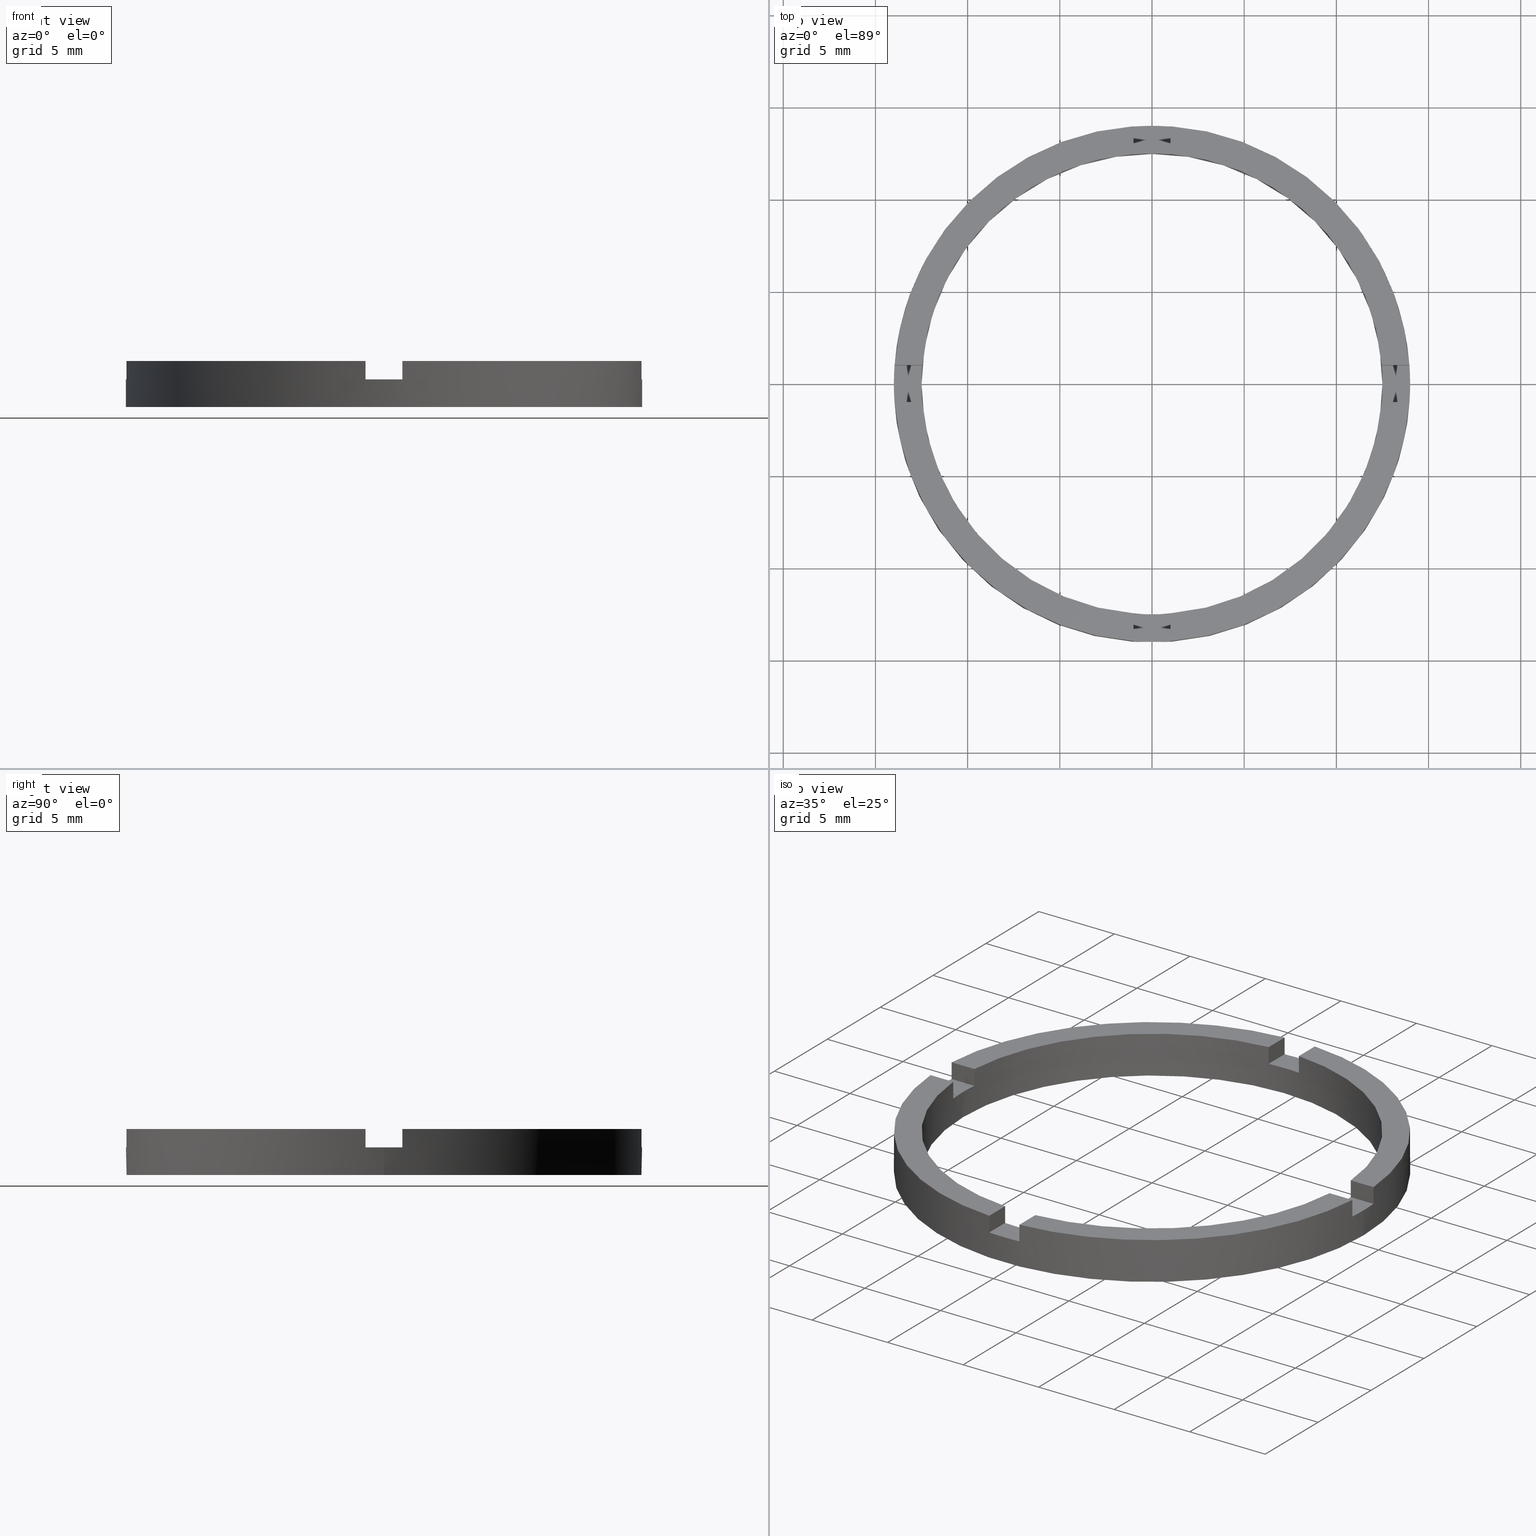
[diagram: canonical four-view strip — front | top / right | iso, engineering-drawing reading convention]
A machine part, canonical four-view strip (front | top / right | iso — engineering-drawing reading convention). The complete STEP part file that produces these views, byte-faithful:
ISO-10303-21;
HEADER;
FILE_DESCRIPTION (( 'STEP AP203' ),
    '1' );
FILE_NAME ('514062.step',
    '2024-12-26T02:33:55',
    ( 'MSI' ),
    ( '' ),
    'SwSTEP 2.0',
    'SolidWorks 2020',
    '' );
FILE_SCHEMA (( 'CONFIG_CONTROL_DESIGN' ));
ENDSEC;

DATA;
#1 = CIRCLE ( 'NONE', #242, 12.50000000000000000 ) ;
#2 = FACE_OUTER_BOUND ( 'NONE', #368, .T. ) ;
#3 = LINE ( 'NONE', #407, #265 ) ;
#4 = CIRCLE ( 'NONE', #313, 14.00000000000000000 ) ;
#5 = CARTESIAN_POINT ( 'NONE',  ( 0.000000000000000000, 0.000000000000000000, 1.500000000000000000 ) ) ;
#6 = LINE ( 'NONE', #245, #522 ) ;
#7 = VECTOR ( 'NONE', #341, 1000.000000000000000 ) ;
#8 = CYLINDRICAL_SURFACE ( 'NONE', #193, 14.00000000000000000 ) ;
#9 = CARTESIAN_POINT ( 'NONE',  ( 0.000000000000000000, 0.000000000000000000, 1.500000000000000000 ) ) ;
#10 = VECTOR ( 'NONE', #627, 1000.000000000000000 ) ;
#11 = DIRECTION ( 'NONE',  ( 1.000000000000000000, 0.000000000000000000, 0.000000000000000000 ) ) ;
#12 = CARTESIAN_POINT ( 'NONE',  ( 12.50000000000000000, 1.530808498934191521E-15, 2.500000000000000000 ) ) ;
#13 = DIRECTION ( 'NONE',  ( 0.000000000000000000, 0.000000000000000000, 1.000000000000000000 ) ) ;
#14 = CARTESIAN_POINT ( 'NONE',  ( 0.000000000000000000, 0.000000000000000000, 2.500000000000000000 ) ) ;
#15 = EDGE_CURVE ( 'NONE', #456, #420, #459, .T. ) ;
#16 = APPROVAL_PERSON_ORGANIZATION ( #304, #643, #562 ) ;
#17 = ADVANCED_FACE ( 'NONE', ( #260 ), #8, .T. ) ;
#18 = DIRECTION ( 'NONE',  ( 1.000000000000000000, 0.000000000000000000, 0.000000000000000000 ) ) ;
#19 = PERSON_AND_ORGANIZATION ( #90, #343 ) ;
#20 = CARTESIAN_POINT ( 'NONE',  ( 12.45993579437710075, -1.000000000000159872, 2.500000000000000000 ) ) ;
#21 = CARTESIAN_POINT ( 'NONE',  ( 0.9999999999999753530, 4.000000000000000000, 2.500000000000000000 ) ) ;
#22 = DIRECTION ( 'NONE',  ( 1.000000000000000000, 4.336808689942017736E-17, 0.000000000000000000 ) ) ;
#23 = COORDINATED_UNIVERSAL_TIME_OFFSET ( 8, 0, .AHEAD. ) ;
#24 = DIRECTION ( 'NONE',  ( 0.000000000000000000, 0.000000000000000000, 1.000000000000000000 ) ) ;
#25 = LOCAL_TIME ( 10, 33, 55.00000000000000000, #549 ) ;
#26 = DIRECTION ( 'NONE',  ( 1.000000000000000000, 0.000000000000000000, 0.000000000000000000 ) ) ;
#27 = PERSON_AND_ORGANIZATION ( #90, #343 ) ;
#28 = EDGE_CURVE ( 'NONE', #187, #665, #530, .T. ) ;
#29 = DIRECTION ( 'NONE',  ( -0.000000000000000000, -0.000000000000000000, -1.000000000000000000 ) ) ;
#30 = DATE_AND_TIME ( #544, #298 ) ;
#31 = DIRECTION ( 'NONE',  ( 1.301042606982605321E-16, -1.000000000000000000, 0.000000000000000000 ) ) ;
#32 = AXIS2_PLACEMENT_3D ( 'NONE', #561, #601, #31 ) ;
#33 = DIRECTION ( 'NONE',  ( 0.000000000000000000, 0.000000000000000000, 1.000000000000000000 ) ) ;
#34 = COORDINATED_UNIVERSAL_TIME_OFFSET ( 8, 0, .AHEAD. ) ;
#35 = DIRECTION ( 'NONE',  ( 1.000000000000000000, 0.000000000000000000, 0.000000000000000000 ) ) ;
#36 = CARTESIAN_POINT ( 'NONE',  ( -1.000000000000024647, 12.45993579437711141, 1.500000000000000000 ) ) ;
#37 = DATE_AND_TIME ( #537, #41 ) ;
#38 = LOCAL_TIME ( 10, 33, 55.00000000000000000, #295 ) ;
#39 = DIRECTION ( 'NONE',  ( -1.000000000000000000, -1.734723475976807094E-16, 0.000000000000000000 ) ) ;
#40 = PERSON_AND_ORGANIZATION ( #90, #343 ) ;
#41 = LOCAL_TIME ( 10, 33, 55.00000000000000000, #301 ) ;
#42 = CARTESIAN_POINT ( 'NONE',  ( 13.96424004376893002, -1.000000000000159650, 2.500000000000000000 ) ) ;
#43 = CARTESIAN_POINT ( 'NONE',  ( 0.000000000000000000, 0.000000000000000000, 0.000000000000000000 ) ) ;
#44 = DIRECTION ( 'NONE',  ( 1.000000000000000000, 0.000000000000000000, 0.000000000000000000 ) ) ;
#45 = EDGE_CURVE ( 'NONE', #656, #655, #524, .T. ) ;
#46 = DIRECTION ( 'NONE',  ( 0.000000000000000000, 0.000000000000000000, 1.000000000000000000 ) ) ;
#47 = APPLICATION_CONTEXT ( 'configuration controlled 3d designs of mechanical parts and assemblies' ) ;
#48 = DIRECTION ( 'NONE',  ( 0.000000000000000000, 0.000000000000000000, 1.000000000000000000 ) ) ;
#49 = AXIS2_PLACEMENT_3D ( 'NONE', #422, #543, #646 ) ;
#50 = AXIS2_PLACEMENT_3D ( 'NONE', #209, #264, #323 ) ;
#51 = DIRECTION ( 'NONE',  ( 1.000000000000000000, 0.000000000000000000, 0.000000000000000000 ) ) ;
#52 = EDGE_CURVE ( 'NONE', #116, #447, #269, .T. ) ;
#53 = DIRECTION ( 'NONE',  ( 0.000000000000000000, 0.000000000000000000, 1.000000000000000000 ) ) ;
#54 = CARTESIAN_POINT ( 'NONE',  ( -4.000000000000185629, 0.9999999999999790168, 2.500000000000000000 ) ) ;
#55 = AXIS2_PLACEMENT_3D ( 'NONE', #764, #148, #380 ) ;
#56 = CARTESIAN_POINT ( 'NONE',  ( -1.000000000000164535, -4.000000000000180300, 2.500000000000000000 ) ) ;
#57 = CARTESIAN_POINT ( 'NONE',  ( 0.000000000000000000, 0.000000000000000000, 0.000000000000000000 ) ) ;
#58 = PLANE ( 'NONE',  #410 ) ;
#59 = CC_DESIGN_DATE_AND_TIME_ASSIGNMENT ( #547, #84, ( #361 ) ) ;
#60 = PLANE ( 'NONE',  #106 ) ;
#61 = EDGE_CURVE ( 'NONE', #711, #420, #519, .T. ) ;
#62 = CARTESIAN_POINT ( 'NONE',  ( 0.000000000000000000, 0.000000000000000000, 2.500000000000000000 ) ) ;
#63 = ADVANCED_FACE ( 'NONE', ( #2 ), #639, .T. ) ;
#64 = EDGE_CURVE ( 'NONE', #227, #116, #3, .T. ) ;
#65 = DIRECTION ( 'NONE',  ( -1.000000000000000000, -4.336808689942017736E-17, 0.000000000000000000 ) ) ;
#66 = DIRECTION ( 'NONE',  ( 1.000000000000000000, 0.000000000000000000, 0.000000000000000000 ) ) ;
#67 = AXIS2_PLACEMENT_3D ( 'NONE', #117, #397, #184 ) ;
#68 = DIRECTION ( 'NONE',  ( 0.000000000000000000, -0.000000000000000000, 1.000000000000000000 ) ) ;
#69 = CARTESIAN_POINT ( 'NONE',  ( 13.96424004376895311, 0.9999999999998404610, 2.500000000000000000 ) ) ;
#70 = ADVANCED_BREP_SHAPE_REPRESENTATION ( '514062', ( #741, #675 ), #286 ) ;
#71 = PLANE ( 'NONE',  #558 ) ;
#72 = EDGE_CURVE ( 'NONE', #648, #231, #525, .T. ) ;
#73 = DIRECTION ( 'NONE',  ( 0.000000000000000000, 0.000000000000000000, 1.000000000000000000 ) ) ;
#74 = ADVANCED_FACE ( 'NONE', ( #266 ), #60, .T. ) ;
#75 = DIRECTION ( 'NONE',  ( 0.000000000000000000, 0.000000000000000000, 1.000000000000000000 ) ) ;
#76 = PRODUCT_DEFINITION_SHAPE ( 'NONE', 'NONE',  #395 ) ;
#77 = DIRECTION ( 'NONE',  ( 1.000000000000000000, 1.734723475976807094E-16, 0.000000000000000000 ) ) ;
#78 = AXIS2_PLACEMENT_3D ( 'NONE', #435, #754, #77 ) ;
#79 = EDGE_CURVE ( 'NONE', #131, #448, #4, .T. ) ;
#80 = DIRECTION ( 'NONE',  ( 1.000000000000000000, 1.734723475976807094E-16, -0.000000000000000000 ) ) ;
#81 = DIRECTION ( 'NONE',  ( 1.000000000000000000, 0.000000000000000000, 0.000000000000000000 ) ) ;
#82 = FACE_OUTER_BOUND ( 'NONE', #160, .T. ) ;
#83 = AXIS2_PLACEMENT_3D ( 'NONE', #523, #776, #373 ) ;
#84 = DATE_TIME_ROLE ( 'classification_date' ) ;
#85 = LINE ( 'NONE', #143, #333 ) ;
#86 = VECTOR ( 'NONE', #29, 1000.000000000000000 ) ;
#87 = CARTESIAN_POINT ( 'NONE',  ( 0.9999999999998366862, -13.96424004376895311, 2.500000000000000000 ) ) ;
#88 = VECTOR ( 'NONE', #683, 1000.000000000000000 ) ;
#89 = VECTOR ( 'NONE', #228, 1000.000000000000000 ) ;
#90 = PERSON ( 'δָ��', 'δָ��', 'δָ��', ('δָ��'), ('δָ��'), ('δָ��') ) ;
#91 = EDGE_CURVE ( 'NONE', #648, #448, #528, .T. ) ;
#92 = DIRECTION ( 'NONE',  ( 0.000000000000000000, 0.000000000000000000, 1.000000000000000000 ) ) ;
#93 = AXIS2_PLACEMENT_3D ( 'NONE', #717, #238, #330 ) ;
#94 = DIRECTION ( 'NONE',  ( 0.000000000000000000, 0.000000000000000000, 1.000000000000000000 ) ) ;
#95 = LINE ( 'NONE', #450, #89 ) ;
#96 = CARTESIAN_POINT ( 'NONE',  ( 3.999999999999994671, -1.000000000000160094, 1.500000000000000000 ) ) ;
#97 = PLANE ( 'NONE',  #261 ) ;
#98 = DIRECTION ( 'NONE',  ( -0.000000000000000000, -0.000000000000000000, -1.000000000000000000 ) ) ;
#99 = ORIENTED_EDGE ( 'NONE', *, *, #556, .F. ) ;
#100 = PERSON_AND_ORGANIZATION ( #90, #343 ) ;
#101 = EDGE_CURVE ( 'NONE', #173, #668, #6, .T. ) ;
#102 = LINE ( 'NONE', #42, #585 ) ;
#103 = LINE ( 'NONE', #56, #596 ) ;
#104 = FACE_OUTER_BOUND ( 'NONE', #431, .T. ) ;
#105 = LINE ( 'NONE', #322, #349 ) ;
#106 = AXIS2_PLACEMENT_3D ( 'NONE', #5, #486, #475 ) ;
#107 = VECTOR ( 'NONE', #685, 1000.000000000000000 ) ;
#108 = DIRECTION ( 'NONE',  ( -1.000000000000000000, -1.734723475976807094E-16, 0.000000000000000000 ) ) ;
#109 = VECTOR ( 'NONE', #520, 1000.000000000000000 ) ;
#110 = DIRECTION ( 'NONE',  ( 0.000000000000000000, 0.000000000000000000, 1.000000000000000000 ) ) ;
#111 = CIRCLE ( 'NONE', #206, 14.00000000000000000 ) ;
#112 = CARTESIAN_POINT ( 'NONE',  ( 0.000000000000000000, 0.000000000000000000, 2.500000000000000000 ) ) ;
#113 = LINE ( 'NONE', #550, #359 ) ;
#114 = FACE_OUTER_BOUND ( 'NONE', #200, .T. ) ;
#115 = CIRCLE ( 'NONE', #327, 14.00000000000000000 ) ;
#116 = VERTEX_POINT ( 'NONE', #310 ) ;
#117 = CARTESIAN_POINT ( 'NONE',  ( 0.000000000000000000, 0.000000000000000000, 1.500000000000000000 ) ) ;
#118 = LINE ( 'NONE', #512, #365 ) ;
#119 = ORIENTED_EDGE ( 'NONE', *, *, #352, .F. ) ;
#120 = CARTESIAN_POINT ( 'NONE',  ( -1.000000000000024647, 13.96424004376894068, 1.500000000000000000 ) ) ;
#121 = CYLINDRICAL_SURFACE ( 'NONE', #165, 12.50000000000000000 ) ;
#122 = ORIENTED_EDGE ( 'NONE', *, *, #321, .T. ) ;
#123 = DIRECTION ( 'NONE',  ( -1.000000000000000000, 0.000000000000000000, 0.000000000000000000 ) ) ;
#124 = CC_DESIGN_APPROVAL ( #643, ( #361 ) ) ;
#125 = ORIENTED_EDGE ( 'NONE', *, *, #79, .T. ) ;
#126 = EDGE_CURVE ( 'NONE', #752, #413, #270, .T. ) ;
#127 = EDGE_LOOP ( 'NONE', ( #401, #669 ) ) ;
#128 = ORIENTED_EDGE ( 'NONE', *, *, #233, .F. ) ;
#129 = AXIS2_PLACEMENT_3D ( 'NONE', #676, #53, #226 ) ;
#130 = CARTESIAN_POINT ( 'NONE',  ( 0.000000000000000000, 0.000000000000000000, 2.500000000000000000 ) ) ;
#131 = VERTEX_POINT ( 'NONE', #579 ) ;
#132 = CARTESIAN_POINT ( 'NONE',  ( -4.000000000000185629, 0.9999999999999790168, 1.500000000000000000 ) ) ;
#133 = DIRECTION ( 'NONE',  ( 1.000000000000000000, 0.000000000000000000, 0.000000000000000000 ) ) ;
#134 = ORIENTED_EDGE ( 'NONE', *, *, #729, .F. ) ;
#135 = EDGE_LOOP ( 'NONE', ( #392, #724, #134, #699 ) ) ;
#136 = ADVANCED_FACE ( 'NONE', ( #263, #735 ), #97, .F. ) ;
#137 = CARTESIAN_POINT ( 'NONE',  ( 0.000000000000000000, 0.000000000000000000, 0.000000000000000000 ) ) ;
#138 = AXIS2_PLACEMENT_3D ( 'NONE', #300, #712, #403 ) ;
#139 = CARTESIAN_POINT ( 'NONE',  ( -12.45993579437711141, -1.000000000000022649, 2.500000000000000000 ) ) ;
#140 = PLANE ( 'NONE',  #32 ) ;
#141 = ORIENTED_EDGE ( 'NONE', *, *, #710, .F. ) ;
#142 = DIRECTION ( 'NONE',  ( 0.000000000000000000, 0.000000000000000000, 1.000000000000000000 ) ) ;
#143 = CARTESIAN_POINT ( 'NONE',  ( 3.999999999999994671, 0.9999999999998400169, 1.500000000000000000 ) ) ;
#144 = ORIENTED_EDGE ( 'NONE', *, *, #52, .T. ) ;
#145 = ORIENTED_EDGE ( 'NONE', *, *, #326, .F. ) ;
#146 = EDGE_LOOP ( 'NONE', ( #208, #434, #190, #177 ) ) ;
#147 = ORIENTED_EDGE ( 'NONE', *, *, #697, .T. ) ;
#148 = DIRECTION ( 'NONE',  ( -0.000000000000000000, 0.000000000000000000, 1.000000000000000000 ) ) ;
#149 = CARTESIAN_POINT ( 'NONE',  ( -1.000000000000024647, 4.000000000000000000, 2.500000000000000000 ) ) ;
#150 = EDGE_LOOP ( 'NONE', ( #460, #387, #141, #726 ) ) ;
#151 = EDGE_CURVE ( 'NONE', #364, #429, #477, .T. ) ;
#152 = VERTEX_POINT ( 'NONE', #739 ) ;
#153 = EDGE_LOOP ( 'NONE', ( #716, #211, #621, #432, #181, #640 ) ) ;
#154 = ORIENTED_EDGE ( 'NONE', *, *, #679, .F. ) ;
#155 = CARTESIAN_POINT ( 'NONE',  ( 0.000000000000000000, 0.000000000000000000, 0.000000000000000000 ) ) ;
#156 = VERTEX_POINT ( 'NONE', #589 ) ;
#157 = ORIENTED_EDGE ( 'NONE', *, *, #654, .T. ) ;
#158 = PERSON_AND_ORGANIZATION_ROLE ( 'design_owner' ) ;
#159 = CC_DESIGN_PERSON_AND_ORGANIZATION_ASSIGNMENT ( #293, #230, ( #395 ) ) ;
#160 = EDGE_LOOP ( 'NONE', ( #464, #713, #469, #694 ) ) ;
#161 = EDGE_CURVE ( 'NONE', #660, #180, #742, .T. ) ;
#162 = EDGE_LOOP ( 'NONE', ( #182, #210, #662, #645, #681, #232, #443, #170, #418, #433, #684, #99 ) ) ;
#163 = CARTESIAN_POINT ( 'NONE',  ( 0.000000000000000000, 0.000000000000000000, 0.000000000000000000 ) ) ;
#164 = ORIENTED_EDGE ( 'NONE', *, *, #72, .T. ) ;
#165 = AXIS2_PLACEMENT_3D ( 'NONE', #251, #371, #123 ) ;
#166 = DIRECTION ( 'NONE',  ( 0.000000000000000000, 0.000000000000000000, 1.000000000000000000 ) ) ;
#167 = ORIENTED_EDGE ( 'NONE', *, *, #275, .T. ) ;
#168 = ORIENTED_EDGE ( 'NONE', *, *, #363, .T. ) ;
#169 = DIRECTION ( 'NONE',  ( 0.000000000000000000, 0.000000000000000000, 1.000000000000000000 ) ) ;
#170 = ORIENTED_EDGE ( 'NONE', *, *, #625, .T. ) ;
#171 = ORIENTED_EDGE ( 'NONE', *, *, #15, .F. ) ;
#172 = CARTESIAN_POINT ( 'NONE',  ( 0.000000000000000000, 0.000000000000000000, 2.500000000000000000 ) ) ;
#173 = VERTEX_POINT ( 'NONE', #69 ) ;
#174 = DIRECTION ( 'NONE',  ( 1.301042606982605321E-16, -1.000000000000000000, 0.000000000000000000 ) ) ;
#175 = ORIENTED_EDGE ( 'NONE', *, *, #540, .T. ) ;
#176 = DIRECTION ( 'NONE',  ( 0.000000000000000000, -0.000000000000000000, 1.000000000000000000 ) ) ;
#177 = ORIENTED_EDGE ( 'NONE', *, *, #61, .F. ) ;
#178 = DIRECTION ( 'NONE',  ( 0.000000000000000000, 0.000000000000000000, 1.000000000000000000 ) ) ;
#179 = ORIENTED_EDGE ( 'NONE', *, *, #256, .F. ) ;
#180 = VERTEX_POINT ( 'NONE', #581 ) ;
#181 = ORIENTED_EDGE ( 'NONE', *, *, #654, .F. ) ;
#182 = ORIENTED_EDGE ( 'NONE', *, *, #267, .F. ) ;
#183 = ORIENTED_EDGE ( 'NONE', *, *, #64, .F. ) ;
#184 = DIRECTION ( 'NONE',  ( 1.000000000000000000, 0.000000000000000000, 0.000000000000000000 ) ) ;
#185 = EDGE_LOOP ( 'NONE', ( #183, #687, #438, #441 ) ) ;
#186 = DIRECTION ( 'NONE',  ( -0.000000000000000000, -1.000000000000000000, -0.000000000000000000 ) ) ;
#187 = VERTEX_POINT ( 'NONE', #649 ) ;
#188 = ORIENTED_EDGE ( 'NONE', *, *, #697, .F. ) ;
#189 = ORIENTED_EDGE ( 'NONE', *, *, #548, .F. ) ;
#190 = ORIENTED_EDGE ( 'NONE', *, *, #15, .T. ) ;
#191 = DIRECTION ( 'NONE',  ( 0.000000000000000000, 1.000000000000000000, 0.000000000000000000 ) ) ;
#192 = ORIENTED_EDGE ( 'NONE', *, *, #570, .F. ) ;
#193 = AXIS2_PLACEMENT_3D ( 'NONE', #172, #243, #303 ) ;
#194 = ADVANCED_FACE ( 'NONE', ( #781 ), #241, .T. ) ;
#195 = DIRECTION ( 'NONE',  ( 0.000000000000000000, 0.000000000000000000, 1.000000000000000000 ) ) ;
#196 = ORIENTED_EDGE ( 'NONE', *, *, #236, .F. ) ;
#197 = AXIS2_PLACEMENT_3D ( 'NONE', #315, #279, #594 ) ;
#198 = ORIENTED_EDGE ( 'NONE', *, *, #151, .F. ) ;
#199 = VERTEX_POINT ( 'NONE', #766 ) ;
#200 = EDGE_LOOP ( 'NONE', ( #465, #650, #734, #414 ) ) ;
#201 = EDGE_CURVE ( 'NONE', #668, #665, #257, .T. ) ;
#202 = ORIENTED_EDGE ( 'NONE', *, *, #247, .T. ) ;
#203 = VECTOR ( 'NONE', #108, 1000.000000000000000 ) ;
#204 = DIRECTION ( 'NONE',  ( 1.000000000000000000, 1.734723475976807094E-16, -0.000000000000000000 ) ) ;
#205 = EDGE_LOOP ( 'NONE', ( #700, #376, #125, #715, #437, #372, #189, #709, #198, #624, #196, #122 ) ) ;
#206 = AXIS2_PLACEMENT_3D ( 'NONE', #155, #73, #508 ) ;
#207 = ORIENTED_EDGE ( 'NONE', *, *, #91, .T. ) ;
#208 = ORIENTED_EDGE ( 'NONE', *, *, #299, .F. ) ;
#209 = CARTESIAN_POINT ( 'NONE',  ( 0.000000000000000000, 0.000000000000000000, 1.500000000000000000 ) ) ;
#210 = ORIENTED_EDGE ( 'NONE', *, *, #28, .T. ) ;
#211 = ORIENTED_EDGE ( 'NONE', *, *, #408, .T. ) ;
#212 = DIRECTION ( 'NONE',  ( 0.000000000000000000, 0.000000000000000000, 1.000000000000000000 ) ) ;
#213 = ORIENTED_EDGE ( 'NONE', *, *, #339, .F. ) ;
#214 = VERTEX_POINT ( 'NONE', #36 ) ;
#215 = DIRECTION ( 'NONE',  ( -1.734723475976807094E-16, 1.000000000000000000, 0.000000000000000000 ) ) ;
#216 = ORIENTED_EDGE ( 'NONE', *, *, #280, .T. ) ;
#217 = CARTESIAN_POINT ( 'NONE',  ( -1.000000000000163203, -13.96424004376893002, 2.500000000000000000 ) ) ;
#218 = DIRECTION ( 'NONE',  ( 1.000000000000000000, 0.000000000000000000, 0.000000000000000000 ) ) ;
#219 = CARTESIAN_POINT ( 'NONE',  ( 0.9999999999998366862, -13.96424004376895311, 1.500000000000000000 ) ) ;
#220 = ORIENTED_EDGE ( 'NONE', *, *, #346, .T. ) ;
#221 = DIRECTION ( 'NONE',  ( -0.000000000000000000, 0.000000000000000000, 1.000000000000000000 ) ) ;
#222 = CARTESIAN_POINT ( 'NONE',  ( 0.9999999999999753530, 12.45993579437711674, 1.500000000000000000 ) ) ;
#223 = VERTEX_POINT ( 'NONE', #564 ) ;
#224 = AXIS2_PLACEMENT_3D ( 'NONE', #541, #578, #65 ) ;
#225 = CARTESIAN_POINT ( 'NONE',  ( 0.9999999999998354649, -4.000000000000180300, 1.500000000000000000 ) ) ;
#226 = DIRECTION ( 'NONE',  ( 1.000000000000000000, 0.000000000000000000, 0.000000000000000000 ) ) ;
#227 = VERTEX_POINT ( 'NONE', #567 ) ;
#228 = DIRECTION ( 'NONE',  ( 0.000000000000000000, 0.000000000000000000, 1.000000000000000000 ) ) ;
#229 = VERTEX_POINT ( 'NONE', #222 ) ;
#230 = PERSON_AND_ORGANIZATION_ROLE ( 'creator' ) ;
#231 = VERTEX_POINT ( 'NONE', #678 ) ;
#232 = ORIENTED_EDGE ( 'NONE', *, *, #710, .T. ) ;
#233 = EDGE_CURVE ( 'NONE', #415, #156, #757, .T. ) ;
#234 = LINE ( 'NONE', #391, #491 ) ;
#235 = CC_DESIGN_APPROVAL ( #406, ( #395 ) ) ;
#236 = EDGE_CURVE ( 'NONE', #173, #180, #506, .T. ) ;
#237 = CIRCLE ( 'NONE', #281, 14.00000000000000000 ) ;
#238 = DIRECTION ( 'NONE',  ( 1.000000000000000000, -0.000000000000000000, 0.000000000000000000 ) ) ;
#239 = VECTOR ( 'NONE', #746, 1000.000000000000000 ) ;
#240 = CARTESIAN_POINT ( 'NONE',  ( -13.96424004376894246, 0.9999999999999772404, 2.500000000000000000 ) ) ;
#241 = CYLINDRICAL_SURFACE ( 'NONE', #536, 14.00000000000000000 ) ;
#242 = AXIS2_PLACEMENT_3D ( 'NONE', #595, #658, #751 ) ;
#243 = DIRECTION ( 'NONE',  ( -0.000000000000000000, -0.000000000000000000, -1.000000000000000000 ) ) ;
#244 = FACE_OUTER_BOUND ( 'NONE', #185, .T. ) ;
#245 = CARTESIAN_POINT ( 'NONE',  ( 3.999999999999994671, 0.9999999999998400169, 2.500000000000000000 ) ) ;
#246 = VECTOR ( 'NONE', #324, 1000.000000000000000 ) ;
#247 = EDGE_CURVE ( 'NONE', #152, #231, #755, .T. ) ;
#248 = LINE ( 'NONE', #284, #493 ) ;
#249 = PRODUCT ( '514062', '514062', '', ( #706 ) ) ;
#250 = FACE_OUTER_BOUND ( 'NONE', #374, .T. ) ;
#251 = CARTESIAN_POINT ( 'NONE',  ( 0.000000000000000000, 0.000000000000000000, 2.500000000000000000 ) ) ;
#252 = CIRCLE ( 'NONE', #490, 12.50000000000000000 ) ;
#253 = CYLINDRICAL_SURFACE ( 'NONE', #138, 12.50000000000000000 ) ;
#254 = DIRECTION ( 'NONE',  ( -0.000000000000000000, -0.000000000000000000, -1.000000000000000000 ) ) ;
#255 = LINE ( 'NONE', #273, #759 ) ;
#256 = EDGE_CURVE ( 'NONE', #229, #364, #780, .T. ) ;
#257 = LINE ( 'NONE', #320, #783 ) ;
#258 = LINE ( 'NONE', #779, #487 ) ;
#259 = ADVANCED_FACE ( 'NONE', ( #250 ), #360, .F. ) ;
#260 = FACE_OUTER_BOUND ( 'NONE', #205, .T. ) ;
#261 = AXIS2_PLACEMENT_3D ( 'NONE', #163, #634, #730 ) ;
#262 = DIRECTION ( 'NONE',  ( 1.000000000000000000, 0.000000000000000000, -0.000000000000000000 ) ) ;
#263 = FACE_OUTER_BOUND ( 'NONE', #725, .T. ) ;
#264 = DIRECTION ( 'NONE',  ( 0.000000000000000000, 0.000000000000000000, 1.000000000000000000 ) ) ;
#265 = VECTOR ( 'NONE', #412, 1000.000000000000000 ) ;
#266 = FACE_OUTER_BOUND ( 'NONE', #150, .T. ) ;
#267 = EDGE_CURVE ( 'NONE', #187, #199, #511, .T. ) ;
#268 = PLANE ( 'NONE',  #575 ) ;
#269 = LINE ( 'NONE', #534, #518 ) ;
#270 = CIRCLE ( 'NONE', #49, 14.00000000000000000 ) ;
#271 = CARTESIAN_POINT ( 'NONE',  ( -1.000000000000024647, 13.96424004376894068, 2.500000000000000000 ) ) ;
#272 = DESIGN_CONTEXT ( 'detailed design', #47, 'design' ) ;
#273 = CARTESIAN_POINT ( 'NONE',  ( -4.000000000000185629, 0.9999999999999790168, 1.500000000000000000 ) ) ;
#274 = VECTOR ( 'NONE', #46, 1000.000000000000000 ) ;
#275 = EDGE_CURVE ( 'NONE', #655, #689, #496, .T. ) ;
#276 = ADVANCED_FACE ( 'NONE', ( #510 ), #509, .F. ) ;
#277 = CC_DESIGN_PERSON_AND_ORGANIZATION_ASSIGNMENT ( #27, #526, ( #774 ) ) ;
#278 = PLANE ( 'NONE',  #83 ) ;
#279 = DIRECTION ( 'NONE',  ( 0.000000000000000000, 0.000000000000000000, 1.000000000000000000 ) ) ;
#280 = EDGE_CURVE ( 'NONE', #656, #723, #765, .T. ) ;
#281 = AXIS2_PLACEMENT_3D ( 'NONE', #707, #166, #535 ) ;
#282 = CALENDAR_DATE ( 2024, 26, 12 ) ;
#283 = DIRECTION ( 'NONE',  ( -0.000000000000000000, -0.000000000000000000, -1.000000000000000000 ) ) ;
#284 = CARTESIAN_POINT ( 'NONE',  ( 0.9999999999999753530, 13.96424004376894423, 2.500000000000000000 ) ) ;
#285 = CARTESIAN_POINT ( 'NONE',  ( -13.96424004376894068, -1.000000000000022871, 2.500000000000000000 ) ) ;
#286 =( GEOMETRIC_REPRESENTATION_CONTEXT ( 3 ) GLOBAL_UNCERTAINTY_ASSIGNED_CONTEXT ( ( #664 ) ) GLOBAL_UNIT_ASSIGNED_CONTEXT ( ( #317, #563, #607 ) ) REPRESENTATION_CONTEXT ( 'NONE', 'WORKASPACE' ) );
#287 = CARTESIAN_POINT ( 'NONE',  ( -4.000000000000185629, -1.000000000000021094, 2.500000000000000000 ) ) ;
#288 = SHAPE_DEFINITION_REPRESENTATION ( #76, #70 ) ;
#289 = CALENDAR_DATE ( 2024, 26, 12 ) ;
#290 = AXIS2_PLACEMENT_3D ( 'NONE', #532, #221, #471 ) ;
#291 = LOCAL_TIME ( 10, 33, 55.00000000000000000, #23 ) ;
#292 = APPLICATION_CONTEXT ( 'configuration controlled 3d designs of mechanical parts and assemblies' ) ;
#293 = PERSON_AND_ORGANIZATION ( #90, #343 ) ;
#294 = APPROVAL_PERSON_ORGANIZATION ( #297, #554, #470 ) ;
#295 = COORDINATED_UNIVERSAL_TIME_OFFSET ( 8, 0, .AHEAD. ) ;
#296 = CALENDAR_DATE ( 2024, 26, 12 ) ;
#297 = PERSON_AND_ORGANIZATION ( #90, #343 ) ;
#298 = LOCAL_TIME ( 10, 33, 55.00000000000000000, #34 ) ;
#299 = EDGE_CURVE ( 'NONE', #411, #711, #255, .T. ) ;
#300 = CARTESIAN_POINT ( 'NONE',  ( 0.000000000000000000, 0.000000000000000000, 2.500000000000000000 ) ) ;
#301 = COORDINATED_UNIVERSAL_TIME_OFFSET ( 8, 0, .AHEAD. ) ;
#302 = DATE_AND_TIME ( #282, #38 ) ;
#303 = DIRECTION ( 'NONE',  ( -1.000000000000000000, 0.000000000000000000, 0.000000000000000000 ) ) ;
#304 = PERSON_AND_ORGANIZATION ( #90, #343 ) ;
#305 = CARTESIAN_POINT ( 'NONE',  ( 0.9999999999998354649, -4.000000000000180300, 2.500000000000000000 ) ) ;
#306 = DIRECTION ( 'NONE',  ( 0.000000000000000000, 0.000000000000000000, 1.000000000000000000 ) ) ;
#307 = DIRECTION ( 'NONE',  ( 0.000000000000000000, 0.000000000000000000, 1.000000000000000000 ) ) ;
#308 = CC_DESIGN_DATE_AND_TIME_ASSIGNMENT ( #302, #390, ( #395 ) ) ;
#309 = EDGE_CURVE ( 'NONE', #652, #480, #1, .T. ) ;
#310 = CARTESIAN_POINT ( 'NONE',  ( -1.000000000000163203, -13.96424004376893002, 1.500000000000000000 ) ) ;
#311 = CARTESIAN_POINT ( 'NONE',  ( -1.000000000000024647, 4.000000000000000000, 1.500000000000000000 ) ) ;
#312 = DIRECTION ( 'NONE',  ( -1.000000000000000000, -1.734723475976807094E-16, 0.000000000000000000 ) ) ;
#313 = AXIS2_PLACEMENT_3D ( 'NONE', #57, #110, #481 ) ;
#314 = ADVANCED_FACE ( 'NONE', ( #244 ), #140, .F. ) ;
#315 = CARTESIAN_POINT ( 'NONE',  ( 0.000000000000000000, 0.000000000000000000, 1.500000000000000000 ) ) ;
#316 = EDGE_CURVE ( 'NONE', #655, #442, #258, .T. ) ;
#317 =( LENGTH_UNIT ( ) NAMED_UNIT ( * ) SI_UNIT ( .MILLI., .METRE. ) );
#318 = DIRECTION ( 'NONE',  ( 1.000000000000000000, 4.336808689942017736E-17, 0.000000000000000000 ) ) ;
#319 = CARTESIAN_POINT ( 'NONE',  ( -12.50000000000000000, 0.000000000000000000, 2.500000000000000000 ) ) ;
#320 = CARTESIAN_POINT ( 'NONE',  ( 12.45993579437712739, 0.9999999999998402389, 2.500000000000000000 ) ) ;
#321 = EDGE_CURVE ( 'NONE', #173, #468, #777, .T. ) ;
#322 = CARTESIAN_POINT ( 'NONE',  ( -1.000000000000024647, 12.45993579437711141, 2.500000000000000000 ) ) ;
#323 = DIRECTION ( 'NONE',  ( 1.000000000000000000, 0.000000000000000000, -0.000000000000000000 ) ) ;
#324 = DIRECTION ( 'NONE',  ( -0.000000000000000000, -0.000000000000000000, -1.000000000000000000 ) ) ;
#325 = PLANE ( 'NONE',  #55 ) ;
#326 = EDGE_CURVE ( 'NONE', #668, #660, #501, .T. ) ;
#327 = AXIS2_PLACEMENT_3D ( 'NONE', #753, #500, #26 ) ;
#328 = PRODUCT_RELATED_PRODUCT_CATEGORY ( 'detail', '', ( #249 ) ) ;
#329 = CIRCLE ( 'NONE', #782, 14.00000000000000000 ) ;
#330 = DIRECTION ( 'NONE',  ( 0.000000000000000000, 0.000000000000000000, -1.000000000000000000 ) ) ;
#331 = CIRCLE ( 'NONE', #455, 12.50000000000000000 ) ;
#332 = FACE_OUTER_BOUND ( 'NONE', #153, .T. ) ;
#333 = VECTOR ( 'NONE', #560, 1000.000000000000000 ) ;
#334 = CARTESIAN_POINT ( 'NONE',  ( 0.000000000000000000, 0.000000000000000000, 1.500000000000000000 ) ) ;
#335 = CARTESIAN_POINT ( 'NONE',  ( 12.45993579437710075, -1.000000000000159872, 2.500000000000000000 ) ) ;
#336 = EDGE_CURVE ( 'NONE', #223, #199, #488, .T. ) ;
#337 = LINE ( 'NONE', #366, #351 ) ;
#338 = CARTESIAN_POINT ( 'NONE',  ( -12.45993579437711496, 0.9999999999999774625, 1.500000000000000000 ) ) ;
#339 = EDGE_CURVE ( 'NONE', #413, #131, #507, .T. ) ;
#340 = LINE ( 'NONE', #271, #86 ) ;
#341 = DIRECTION ( 'NONE',  ( -1.301042606982605321E-16, 1.000000000000000000, -0.000000000000000000 ) ) ;
#342 = CARTESIAN_POINT ( 'NONE',  ( 0.9999999999998365752, -12.45993579437712739, 1.500000000000000000 ) ) ;
#343 = ORGANIZATION ( 'δָ��', 'δָ��', '' ) ;
#344 = EDGE_LOOP ( 'NONE', ( #428, #698, #396, #466 ) ) ;
#345 = PERSON_AND_ORGANIZATION ( #90, #343 ) ;
#346 = EDGE_CURVE ( 'NONE', #711, #648, #489, .T. ) ;
#347 = DIRECTION ( 'NONE',  ( 1.000000000000000000, 0.000000000000000000, 0.000000000000000000 ) ) ;
#348 = AXIS2_PLACEMENT_3D ( 'NONE', #132, #215, #39 ) ;
#349 = VECTOR ( 'NONE', #385, 1000.000000000000000 ) ;
#350 = DIRECTION ( 'NONE',  ( 1.000000000000000000, 0.000000000000000000, -0.000000000000000000 ) ) ;
#351 = VECTOR ( 'NONE', #283, 1000.000000000000000 ) ;
#352 = EDGE_CURVE ( 'NONE', #227, #405, #234, .T. ) ;
#353 = VECTOR ( 'NONE', #514, 1000.000000000000000 ) ;
#354 = CIRCLE ( 'NONE', #682, 12.50000000000000000 ) ;
#355 = DIRECTION ( 'NONE',  ( -1.000000000000000000, 0.000000000000000000, 0.000000000000000000 ) ) ;
#356 = AXIS2_PLACEMENT_3D ( 'NONE', #661, #142, #262 ) ;
#357 = FACE_OUTER_BOUND ( 'NONE', #483, .T. ) ;
#358 = LINE ( 'NONE', #555, #353 ) ;
#359 = VECTOR ( 'NONE', #22, 1000.000000000000000 ) ;
#360 = PLANE ( 'NONE',  #224 ) ;
#361 = SECURITY_CLASSIFICATION ( '', '', #620 ) ;
#362 = FACE_OUTER_BOUND ( 'NONE', #162, .T. ) ;
#363 = EDGE_CURVE ( 'NONE', #152, #705, #768, .T. ) ;
#364 = VERTEX_POINT ( 'NONE', #630 ) ;
#365 = VECTOR ( 'NONE', #204, 1000.000000000000000 ) ;
#366 = CARTESIAN_POINT ( 'NONE',  ( 0.9999999999998366862, -13.96424004376895311, 2.500000000000000000 ) ) ;
#367 = DIRECTION ( 'NONE',  ( 0.000000000000000000, 0.000000000000000000, 1.000000000000000000 ) ) ;
#368 = EDGE_LOOP ( 'NONE', ( #128, #666, #171, #427 ) ) ;
#369 = ADVANCED_FACE ( 'NONE', ( #758 ), #253, .F. ) ;
#370 = ORIENTED_EDGE ( 'NONE', *, *, #316, .F. ) ;
#371 = DIRECTION ( 'NONE',  ( -0.000000000000000000, -0.000000000000000000, -1.000000000000000000 ) ) ;
#372 = ORIENTED_EDGE ( 'NONE', *, *, #61, .T. ) ;
#373 = DIRECTION ( 'NONE',  ( -1.301042606982605321E-16, 1.000000000000000000, 0.000000000000000000 ) ) ;
#374 = EDGE_LOOP ( 'NONE', ( #721, #702, #154, #388 ) ) ;
#375 = CARTESIAN_POINT ( 'NONE',  ( 12.45993579437712739, 0.9999999999998402389, 1.500000000000000000 ) ) ;
#376 = ORIENTED_EDGE ( 'NONE', *, *, #339, .T. ) ;
#377 = EDGE_CURVE ( 'NONE', #705, #480, #769, .T. ) ;
#378 = DIRECTION ( 'NONE',  ( 0.000000000000000000, 0.000000000000000000, 1.000000000000000000 ) ) ;
#379 = CLOSED_SHELL ( 'NONE', ( #369, #17, #63, #545, #430, #494, #136, #194, #439, #748, #737, #738, #599, #314, #647, #259, #557, #583, #276, #559, #74 ) ) ;
#380 = DIRECTION ( 'NONE',  ( 1.000000000000000000, 0.000000000000000000, 0.000000000000000000 ) ) ;
#381 = DIRECTION ( 'NONE',  ( -0.000000000000000000, -0.000000000000000000, -1.000000000000000000 ) ) ;
#382 = EDGE_LOOP ( 'NONE', ( #213, #680, #719, #400, #394, #458, #144, #409, #202, #631, #207, #147 ) ) ;
#383 = EDGE_CURVE ( 'NONE', #227, #442, #504, .T. ) ;
#384 = ORIENTED_EDGE ( 'NONE', *, *, #476, .F. ) ;
#385 = DIRECTION ( 'NONE',  ( -0.000000000000000000, -0.000000000000000000, -1.000000000000000000 ) ) ;
#386 = DIRECTION ( 'NONE',  ( 1.000000000000000000, 0.000000000000000000, 0.000000000000000000 ) ) ;
#387 = ORIENTED_EDGE ( 'NONE', *, *, #513, .T. ) ;
#388 = ORIENTED_EDGE ( 'NONE', *, *, #321, .F. ) ;
#389 = PLANE ( 'NONE',  #402 ) ;
#390 = DATE_TIME_ROLE ( 'creation_date' ) ;
#391 = CARTESIAN_POINT ( 'NONE',  ( -1.000000000000163425, -12.45993579437710075, 2.500000000000000000 ) ) ;
#392 = ORIENTED_EDGE ( 'NONE', *, *, #45, .T. ) ;
#393 = AXIS2_PLACEMENT_3D ( 'NONE', #130, #503, #347 ) ;
#394 = ORIENTED_EDGE ( 'NONE', *, *, #659, .T. ) ;
#395 = PRODUCT_DEFINITION ( 'δ֪', '', #774, #272 ) ;
#396 = ORIENTED_EDGE ( 'NONE', *, *, #513, .F. ) ;
#397 = DIRECTION ( 'NONE',  ( 0.000000000000000000, 0.000000000000000000, 1.000000000000000000 ) ) ;
#398 = EDGE_CURVE ( 'NONE', #364, #180, #248, .T. ) ;
#399 = DIRECTION ( 'NONE',  ( -0.000000000000000000, -0.000000000000000000, -1.000000000000000000 ) ) ;
#400 = ORIENTED_EDGE ( 'NONE', *, *, #280, .F. ) ;
#401 = ORIENTED_EDGE ( 'NONE', *, *, #336, .T. ) ;
#402 = AXIS2_PLACEMENT_3D ( 'NONE', #618, #703, #632 ) ;
#403 = DIRECTION ( 'NONE',  ( -1.000000000000000000, 0.000000000000000000, 0.000000000000000000 ) ) ;
#404 = EDGE_LOOP ( 'NONE', ( #423, #417, #674, #216 ) ) ;
#405 = VERTEX_POINT ( 'NONE', #569 ) ;
#406 = APPROVAL ( #572, 'δָ��' ) ;
#407 = CARTESIAN_POINT ( 'NONE',  ( -1.000000000000164535, -4.000000000000180300, 1.500000000000000000 ) ) ;
#408 = EDGE_CURVE ( 'NONE', #413, #468, #237, .T. ) ;
#409 = ORIENTED_EDGE ( 'NONE', *, *, #529, .F. ) ;
#410 = AXIS2_PLACEMENT_3D ( 'NONE', #112, #178, #482 ) ;
#411 = VERTEX_POINT ( 'NONE', #338 ) ;
#412 = DIRECTION ( 'NONE',  ( 1.301042606982605321E-16, -1.000000000000000000, 0.000000000000000000 ) ) ;
#413 = VERTEX_POINT ( 'NONE', #577 ) ;
#414 = ORIENTED_EDGE ( 'NONE', *, *, #529, .T. ) ;
#415 = VERTEX_POINT ( 'NONE', #644 ) ;
#416 = CARTESIAN_POINT ( 'NONE',  ( 3.999999999999994671, -1.000000000000160094, 1.500000000000000000 ) ) ;
#417 = ORIENTED_EDGE ( 'NONE', *, *, #275, .F. ) ;
#418 = ORIENTED_EDGE ( 'NONE', *, *, #602, .F. ) ;
#419 = EDGE_CURVE ( 'NONE', #705, #405, #252, .T. ) ;
#420 = VERTEX_POINT ( 'NONE', #722 ) ;
#421 = CARTESIAN_POINT ( 'NONE',  ( -1.000000000000024647, 4.000000000000000000, 1.500000000000000000 ) ) ;
#422 = CARTESIAN_POINT ( 'NONE',  ( 0.000000000000000000, 0.000000000000000000, 1.500000000000000000 ) ) ;
#423 = ORIENTED_EDGE ( 'NONE', *, *, #540, .F. ) ;
#424 = DIRECTION ( 'NONE',  ( 4.336808689942017736E-17, -1.000000000000000000, 0.000000000000000000 ) ) ;
#425 = ORIENTED_EDGE ( 'NONE', *, *, #236, .T. ) ;
#426 = ORIENTED_EDGE ( 'NONE', *, *, #299, .T. ) ;
#427 = ORIENTED_EDGE ( 'NONE', *, *, #625, .F. ) ;
#428 = ORIENTED_EDGE ( 'NONE', *, *, #233, .T. ) ;
#429 = VERTEX_POINT ( 'NONE', #120 ) ;
#430 = ADVANCED_FACE ( 'NONE', ( #771 ), #58, .T. ) ;
#431 = EDGE_LOOP ( 'NONE', ( #168, #744, #384, #642 ) ) ;
#432 = ORIENTED_EDGE ( 'NONE', *, *, #28, .F. ) ;
#433 = ORIENTED_EDGE ( 'NONE', *, *, #762, .T. ) ;
#434 = ORIENTED_EDGE ( 'NONE', *, *, #602, .T. ) ;
#435 = CARTESIAN_POINT ( 'NONE',  ( -4.000000000000185629, -1.000000000000021094, 1.500000000000000000 ) ) ;
#436 = ORIENTED_EDGE ( 'NONE', *, *, #573, .F. ) ;
#437 = ORIENTED_EDGE ( 'NONE', *, *, #346, .F. ) ;
#438 = ORIENTED_EDGE ( 'NONE', *, *, #565, .T. ) ;
#439 = ADVANCED_FACE ( 'NONE', ( #362 ), #121, .F. ) ;
#440 = DIRECTION ( 'NONE',  ( 1.000000000000000000, 4.336808689942017736E-17, 0.000000000000000000 ) ) ;
#441 = ORIENTED_EDGE ( 'NONE', *, *, #52, .F. ) ;
#442 = VERTEX_POINT ( 'NONE', #342 ) ;
#443 = ORIENTED_EDGE ( 'NONE', *, *, #584, .F. ) ;
#444 = EDGE_LOOP ( 'NONE', ( #157, #695, #629, #467, #731, #457, #663, #119, #452, #370, #167, #192 ) ) ;
#445 = CARTESIAN_POINT ( 'NONE',  ( 12.45993579437712739, 0.9999999999998402389, 2.500000000000000000 ) ) ;
#446 = AXIS2_PLACEMENT_3D ( 'NONE', #600, #68, #386 ) ;
#447 = VERTEX_POINT ( 'NONE', #217 ) ;
#448 = VERTEX_POINT ( 'NONE', #580 ) ;
#449 = CARTESIAN_POINT ( 'NONE',  ( -12.45993579437711141, -1.000000000000022649, 1.500000000000000000 ) ) ;
#450 = CARTESIAN_POINT ( 'NONE',  ( -12.45993579437711496, 0.9999999999999774625, 2.500000000000000000 ) ) ;
#451 = ORIENTED_EDGE ( 'NONE', *, *, #756, .T. ) ;
#452 = ORIENTED_EDGE ( 'NONE', *, *, #383, .T. ) ;
#453 = PLANE ( 'NONE',  #348 ) ;
#454 = DIRECTION ( 'NONE',  ( -0.000000000000000000, -0.000000000000000000, -1.000000000000000000 ) ) ;
#455 = AXIS2_PLACEMENT_3D ( 'NONE', #137, #672, #66 ) ;
#456 = VERTEX_POINT ( 'NONE', #736 ) ;
#457 = ORIENTED_EDGE ( 'NONE', *, *, #377, .F. ) ;
#458 = ORIENTED_EDGE ( 'NONE', *, *, #479, .F. ) ;
#459 = LINE ( 'NONE', #54, #203 ) ;
#460 = ORIENTED_EDGE ( 'NONE', *, *, #151, .T. ) ;
#461 = DIRECTION ( 'NONE',  ( 1.000000000000000000, 0.000000000000000000, 0.000000000000000000 ) ) ;
#462 = DIRECTION ( 'NONE',  ( 0.000000000000000000, 0.000000000000000000, 1.000000000000000000 ) ) ;
#463 = CARTESIAN_POINT ( 'NONE',  ( 0.9999999999999753530, 4.000000000000000000, 1.500000000000000000 ) ) ;
#464 = ORIENTED_EDGE ( 'NONE', *, *, #479, .T. ) ;
#465 = ORIENTED_EDGE ( 'NONE', *, *, #565, .F. ) ;
#466 = ORIENTED_EDGE ( 'NONE', *, *, #767, .F. ) ;
#467 = ORIENTED_EDGE ( 'NONE', *, *, #670, .F. ) ;
#468 = VERTEX_POINT ( 'NONE', #597 ) ;
#469 = ORIENTED_EDGE ( 'NONE', *, *, #383, .F. ) ;
#470 = APPROVAL_ROLE ( '' ) ;
#471 = DIRECTION ( 'NONE',  ( 1.000000000000000000, 0.000000000000000000, 0.000000000000000000 ) ) ;
#472 = DIRECTION ( 'NONE',  ( 1.000000000000000000, 0.000000000000000000, 0.000000000000000000 ) ) ;
#473 = CARTESIAN_POINT ( 'NONE',  ( -12.45993579437711141, -1.000000000000022649, 2.500000000000000000 ) ) ;
#474 = ORIENTED_EDGE ( 'NONE', *, *, #101, .F. ) ;
#475 = DIRECTION ( 'NONE',  ( 1.000000000000000000, 0.000000000000000000, -0.000000000000000000 ) ) ;
#476 = EDGE_CURVE ( 'NONE', #231, #480, #118, .T. ) ;
#477 = CIRCLE ( 'NONE', #732, 14.00000000000000000 ) ;
#478 = ORIENTED_EDGE ( 'NONE', *, *, #762, .F. ) ;
#479 = EDGE_CURVE ( 'NONE', #116, #677, #623, .T. ) ;
#480 = VERTEX_POINT ( 'NONE', #449 ) ;
#481 = DIRECTION ( 'NONE',  ( 1.000000000000000000, 0.000000000000000000, 0.000000000000000000 ) ) ;
#482 = DIRECTION ( 'NONE',  ( 1.000000000000000000, 0.000000000000000000, -0.000000000000000000 ) ) ;
#483 = EDGE_LOOP ( 'NONE', ( #220, #164, #485, #671, #478, #426 ) ) ;
#484 = CC_DESIGN_APPROVAL ( #554, ( #774 ) ) ;
#485 = ORIENTED_EDGE ( 'NONE', *, *, #476, .T. ) ;
#486 = DIRECTION ( 'NONE',  ( 0.000000000000000000, -0.000000000000000000, 1.000000000000000000 ) ) ;
#487 = VECTOR ( 'NONE', #98, 1000.000000000000000 ) ;
#488 = CIRCLE ( 'NONE', #641, 12.50000000000000000 ) ;
#489 = CIRCLE ( 'NONE', #605, 14.00000000000000000 ) ;
#490 = AXIS2_PLACEMENT_3D ( 'NONE', #62, #306, #11 ) ;
#491 = VECTOR ( 'NONE', #94, 1000.000000000000000 ) ;
#492 = CARTESIAN_POINT ( 'NONE',  ( 0.000000000000000000, 0.000000000000000000, 2.500000000000000000 ) ) ;
#493 = VECTOR ( 'NONE', #462, 1000.000000000000000 ) ;
#494 = ADVANCED_FACE ( 'NONE', ( #114 ), #749, .T. ) ;
#495 = DIRECTION ( 'NONE',  ( -0.000000000000000000, 0.000000000000000000, 1.000000000000000000 ) ) ;
#496 = CIRCLE ( 'NONE', #393, 12.50000000000000000 ) ;
#497 = PLANE ( 'NONE',  #50 ) ;
#498 = CARTESIAN_POINT ( 'NONE',  ( 0.000000000000000000, 0.000000000000000000, 2.500000000000000000 ) ) ;
#499 = VECTOR ( 'NONE', #254, 1000.000000000000000 ) ;
#500 = DIRECTION ( 'NONE',  ( 0.000000000000000000, 0.000000000000000000, 1.000000000000000000 ) ) ;
#501 = CIRCLE ( 'NONE', #129, 12.50000000000000000 ) ;
#502 = CARTESIAN_POINT ( 'NONE',  ( 13.96424004376893002, -1.000000000000159650, 1.500000000000000000 ) ) ;
#503 = DIRECTION ( 'NONE',  ( 0.000000000000000000, 0.000000000000000000, 1.000000000000000000 ) ) ;
#504 = CIRCLE ( 'NONE', #290, 12.50000000000000000 ) ;
#505 = VECTOR ( 'NONE', #80, 1000.000000000000000 ) ;
#506 = CIRCLE ( 'NONE', #619, 14.00000000000000000 ) ;
#507 = LINE ( 'NONE', #686, #775 ) ;
#508 = DIRECTION ( 'NONE',  ( 1.000000000000000000, 0.000000000000000000, 0.000000000000000000 ) ) ;
#509 = PLANE ( 'NONE',  #740 ) ;
#510 = FACE_OUTER_BOUND ( 'NONE', #344, .T. ) ;
#511 = LINE ( 'NONE', #12, #499 ) ;
#512 = CARTESIAN_POINT ( 'NONE',  ( -4.000000000000185629, -1.000000000000021094, 1.500000000000000000 ) ) ;
#513 = EDGE_CURVE ( 'NONE', #429, #214, #617, .T. ) ;
#514 = DIRECTION ( 'NONE',  ( 0.000000000000000000, 0.000000000000000000, 1.000000000000000000 ) ) ;
#515 = DIRECTION ( 'NONE',  ( -0.000000000000000000, -1.000000000000000000, -0.000000000000000000 ) ) ;
#516 = VECTOR ( 'NONE', #191, 1000.000000000000000 ) ;
#517 = VECTOR ( 'NONE', #635, 1000.000000000000000 ) ;
#518 = VECTOR ( 'NONE', #307, 1000.000000000000000 ) ;
#519 = LINE ( 'NONE', #240, #274 ) ;
#520 = DIRECTION ( 'NONE',  ( -0.000000000000000000, -0.000000000000000000, -1.000000000000000000 ) ) ;
#521 = AXIS2_PLACEMENT_3D ( 'NONE', #745, #24, #461 ) ;
#522 = VECTOR ( 'NONE', #539, 1000.000000000000000 ) ;
#523 = CARTESIAN_POINT ( 'NONE',  ( 0.9999999999998354649, -4.000000000000180300, 1.500000000000000000 ) ) ;
#524 = LINE ( 'NONE', #305, #7 ) ;
#525 = CIRCLE ( 'NONE', #67, 14.00000000000000000 ) ;
#526 = PERSON_AND_ORGANIZATION_ROLE ( 'creator' ) ;
#527 = CC_DESIGN_PERSON_AND_ORGANIZATION_ASSIGNMENT ( #19, #696, ( #361 ) ) ;
#528 = LINE ( 'NONE', #574, #10 ) ;
#529 = EDGE_CURVE ( 'NONE', #152, #447, #115, .T. ) ;
#530 = CIRCLE ( 'NONE', #633, 12.50000000000000000 ) ;
#531 = APPROVAL_ROLE ( '' ) ;
#532 = CARTESIAN_POINT ( 'NONE',  ( 0.000000000000000000, 0.000000000000000000, 1.500000000000000000 ) ) ;
#533 = APPROVAL_PERSON_ORGANIZATION ( #100, #406, #531 ) ;
#534 = CARTESIAN_POINT ( 'NONE',  ( -1.000000000000163203, -13.96424004376893002, 2.500000000000000000 ) ) ;
#535 = DIRECTION ( 'NONE',  ( 1.000000000000000000, 0.000000000000000000, 0.000000000000000000 ) ) ;
#536 = AXIS2_PLACEMENT_3D ( 'NONE', #498, #688, #761 ) ;
#537 = CALENDAR_DATE ( 2024, 26, 12 ) ;
#538 = DATE_AND_TIME ( #289, #25 ) ;
#539 = DIRECTION ( 'NONE',  ( -1.000000000000000000, -4.336808689942017736E-17, -0.000000000000000000 ) ) ;
#540 = EDGE_CURVE ( 'NONE', #689, #723, #113, .T. ) ;
#541 = CARTESIAN_POINT ( 'NONE',  ( 3.999999999999994671, 0.9999999999998400169, 1.500000000000000000 ) ) ;
#542 = APPROVAL_DATE_TIME ( #538, #406 ) ;
#543 = DIRECTION ( 'NONE',  ( 0.000000000000000000, 0.000000000000000000, 1.000000000000000000 ) ) ;
#544 = CALENDAR_DATE ( 2024, 26, 12 ) ;
#545 = ADVANCED_FACE ( 'NONE', ( #610 ), #71, .T. ) ;
#546 = DIRECTION ( 'NONE',  ( 1.000000000000000000, 0.000000000000000000, 0.000000000000000000 ) ) ;
#547 = DATE_AND_TIME ( #296, #291 ) ;
#548 = EDGE_CURVE ( 'NONE', #415, #420, #329, .T. ) ;
#549 = COORDINATED_UNIVERSAL_TIME_OFFSET ( 8, 0, .AHEAD. ) ;
#550 = CARTESIAN_POINT ( 'NONE',  ( 3.999999999999994671, -1.000000000000160094, 2.500000000000000000 ) ) ;
#551 = APPROVAL_DATE_TIME ( #30, #643 ) ;
#552 = CARTESIAN_POINT ( 'NONE',  ( -13.96424004376894246, 0.9999999999999772404, 1.500000000000000000 ) ) ;
#553 = APPROVAL_DATE_TIME ( #37, #554 ) ;
#554 = APPROVAL ( #778, 'δָ��' ) ;
#555 = CARTESIAN_POINT ( 'NONE',  ( 0.9999999999999753530, 12.45993579437711674, 2.500000000000000000 ) ) ;
#556 = EDGE_CURVE ( 'NONE', #199, #223, #331, .T. ) ;
#557 = ADVANCED_FACE ( 'NONE', ( #582 ), #268, .F. ) ;
#558 = AXIS2_PLACEMENT_3D ( 'NONE', #743, #195, #350 ) ;
#559 = ADVANCED_FACE ( 'NONE', ( #606 ), #637, .F. ) ;
#560 = DIRECTION ( 'NONE',  ( -1.000000000000000000, -4.336808689942017736E-17, -0.000000000000000000 ) ) ;
#561 = CARTESIAN_POINT ( 'NONE',  ( -1.000000000000164535, -4.000000000000180300, 1.500000000000000000 ) ) ;
#562 = APPROVAL_ROLE ( '' ) ;
#563 =( NAMED_UNIT ( * ) PLANE_ANGLE_UNIT ( ) SI_UNIT ( $, .RADIAN. ) );
#564 = CARTESIAN_POINT ( 'NONE',  ( -12.50000000000000000, 0.000000000000000000, 0.000000000000000000 ) ) ;
#565 = EDGE_CURVE ( 'NONE', #405, #447, #103, .T. ) ;
#566 = CARTESIAN_POINT ( 'NONE',  ( 12.45993579437710075, -1.000000000000159872, 1.500000000000000000 ) ) ;
#567 = CARTESIAN_POINT ( 'NONE',  ( -1.000000000000163425, -12.45993579437710075, 1.500000000000000000 ) ) ;
#568 = PERSON_AND_ORGANIZATION_ROLE ( 'design_supplier' ) ;
#569 = CARTESIAN_POINT ( 'NONE',  ( -1.000000000000163425, -12.45993579437710075, 2.500000000000000000 ) ) ;
#570 = EDGE_CURVE ( 'NONE', #673, #689, #612, .T. ) ;
#571 = CARTESIAN_POINT ( 'NONE',  ( 0.000000000000000000, 0.000000000000000000, 2.500000000000000000 ) ) ;
#572 = APPROVAL_STATUS ( 'not_yet_approved' ) ;
#573 = EDGE_CURVE ( 'NONE', #673, #752, #593, .T. ) ;
#574 = CARTESIAN_POINT ( 'NONE',  ( -14.00000000000000000, 0.000000000000000000, 2.500000000000000000 ) ) ;
#575 = AXIS2_PLACEMENT_3D ( 'NONE', #416, #424, #440 ) ;
#576 = AXIS2_PLACEMENT_3D ( 'NONE', #492, #212, #546 ) ;
#577 = CARTESIAN_POINT ( 'NONE',  ( 14.00000000000000000, 1.714505518806294638E-15, 1.500000000000000000 ) ) ;
#578 = DIRECTION ( 'NONE',  ( -4.336808689942017736E-17, 1.000000000000000000, 0.000000000000000000 ) ) ;
#579 = CARTESIAN_POINT ( 'NONE',  ( 14.00000000000000000, 1.714505518806294638E-15, 0.000000000000000000 ) ) ;
#580 = CARTESIAN_POINT ( 'NONE',  ( -14.00000000000000000, 0.000000000000000000, 0.000000000000000000 ) ) ;
#581 = CARTESIAN_POINT ( 'NONE',  ( 0.9999999999999753530, 13.96424004376894423, 2.500000000000000000 ) ) ;
#582 = FACE_OUTER_BOUND ( 'NONE', #728, .T. ) ;
#583 = ADVANCED_FACE ( 'NONE', ( #332 ), #389, .T. ) ;
#584 = EDGE_CURVE ( 'NONE', #156, #214, #105, .T. ) ;
#585 = VECTOR ( 'NONE', #378, 1000.000000000000000 ) ;
#586 = VECTOR ( 'NONE', #318, 1000.000000000000000 ) ;
#587 = FACE_OUTER_BOUND ( 'NONE', #135, .T. ) ;
#588 = CARTESIAN_POINT ( 'NONE',  ( 0.9999999999998365752, -12.45993579437712739, 2.500000000000000000 ) ) ;
#589 = CARTESIAN_POINT ( 'NONE',  ( -1.000000000000024647, 12.45993579437711141, 2.500000000000000000 ) ) ;
#590 = CIRCLE ( 'NONE', #446, 12.50000000000000000 ) ;
#591 = FACE_OUTER_BOUND ( 'NONE', #146, .T. ) ;
#592 = DIRECTION ( 'NONE',  ( 1.000000000000000000, 0.000000000000000000, 0.000000000000000000 ) ) ;
#593 = LINE ( 'NONE', #96, #586 ) ;
#594 = DIRECTION ( 'NONE',  ( 1.000000000000000000, 0.000000000000000000, 0.000000000000000000 ) ) ;
#595 = CARTESIAN_POINT ( 'NONE',  ( 0.000000000000000000, 0.000000000000000000, 1.500000000000000000 ) ) ;
#596 = VECTOR ( 'NONE', #174, 1000.000000000000000 ) ;
#597 = CARTESIAN_POINT ( 'NONE',  ( 13.96424004376895311, 0.9999999999998404610, 1.500000000000000000 ) ) ;
#598 = LINE ( 'NONE', #319, #109 ) ;
#599 = ADVANCED_FACE ( 'NONE', ( #587 ), #278, .F. ) ;
#600 = CARTESIAN_POINT ( 'NONE',  ( 0.000000000000000000, 0.000000000000000000, 1.500000000000000000 ) ) ;
#601 = DIRECTION ( 'NONE',  ( -1.000000000000000000, -1.301042606982605321E-16, 0.000000000000000000 ) ) ;
#602 = EDGE_CURVE ( 'NONE', #411, #456, #95, .T. ) ;
#603 = CIRCLE ( 'NONE', #521, 12.50000000000000000 ) ;
#604 = ORIENTED_EDGE ( 'NONE', *, *, #636, .F. ) ;
#605 = AXIS2_PLACEMENT_3D ( 'NONE', #760, #48, #35 ) ;
#606 = FACE_OUTER_BOUND ( 'NONE', #638, .T. ) ;
#607 =( NAMED_UNIT ( * ) SI_UNIT ( $, .STERADIAN. ) SOLID_ANGLE_UNIT ( ) );
#608 = CARTESIAN_POINT ( 'NONE',  ( 13.96424004376895311, 0.9999999999998404610, 2.500000000000000000 ) ) ;
#609 = CARTESIAN_POINT ( 'NONE',  ( 0.000000000000000000, 0.000000000000000000, 2.500000000000000000 ) ) ;
#610 = FACE_OUTER_BOUND ( 'NONE', #704, .T. ) ;
#611 = LINE ( 'NONE', #225, #107 ) ;
#612 = LINE ( 'NONE', #335, #88 ) ;
#613 = CARTESIAN_POINT ( 'NONE',  ( 13.96424004376893002, -1.000000000000159650, 2.500000000000000000 ) ) ;
#614 = CARTESIAN_POINT ( 'NONE',  ( 0.000000000000000000, 0.000000000000000000, 0.000000000000000000 ) ) ;
#615 = DIRECTION ( 'NONE',  ( 0.000000000000000000, 0.000000000000000000, 1.000000000000000000 ) ) ;
#616 = CIRCLE ( 'NONE', #197, 12.50000000000000000 ) ;
#617 = LINE ( 'NONE', #311, #622 ) ;
#618 = CARTESIAN_POINT ( 'NONE',  ( 0.000000000000000000, 0.000000000000000000, 1.500000000000000000 ) ) ;
#619 = AXIS2_PLACEMENT_3D ( 'NONE', #609, #615, #81 ) ;
#620 = SECURITY_CLASSIFICATION_LEVEL ( 'unclassified' ) ;
#621 = ORIENTED_EDGE ( 'NONE', *, *, #679, .T. ) ;
#622 = VECTOR ( 'NONE', #186, 1000.000000000000000 ) ;
#623 = CIRCLE ( 'NONE', #701, 14.00000000000000000 ) ;
#624 = ORIENTED_EDGE ( 'NONE', *, *, #398, .T. ) ;
#625 = EDGE_CURVE ( 'NONE', #156, #456, #354, .T. ) ;
#626 = ORIENTED_EDGE ( 'NONE', *, *, #570, .T. ) ;
#627 = DIRECTION ( 'NONE',  ( -0.000000000000000000, -0.000000000000000000, -1.000000000000000000 ) ) ;
#628 = APPLICATION_PROTOCOL_DEFINITION ( 'international standard', 'config_control_design', 1994, #292 ) ;
#629 = ORIENTED_EDGE ( 'NONE', *, *, #336, .F. ) ;
#630 = CARTESIAN_POINT ( 'NONE',  ( 0.9999999999999753530, 13.96424004376894423, 1.500000000000000000 ) ) ;
#631 = ORIENTED_EDGE ( 'NONE', *, *, #72, .F. ) ;
#632 = DIRECTION ( 'NONE',  ( 1.000000000000000000, 0.000000000000000000, -0.000000000000000000 ) ) ;
#633 = AXIS2_PLACEMENT_3D ( 'NONE', #334, #727, #51 ) ;
#634 = DIRECTION ( 'NONE',  ( 0.000000000000000000, 0.000000000000000000, 1.000000000000000000 ) ) ;
#635 = DIRECTION ( 'NONE',  ( -0.000000000000000000, -0.000000000000000000, -1.000000000000000000 ) ) ;
#636 = EDGE_CURVE ( 'NONE', #752, #723, #102, .T. ) ;
#637 = PLANE ( 'NONE',  #93 ) ;
#638 = EDGE_LOOP ( 'NONE', ( #179, #451, #708, #691 ) ) ;
#639 = PLANE ( 'NONE',  #718 ) ;
#640 = ORIENTED_EDGE ( 'NONE', *, *, #573, .T. ) ;
#641 = AXIS2_PLACEMENT_3D ( 'NONE', #614, #169, #44 ) ;
#642 = ORIENTED_EDGE ( 'NONE', *, *, #247, .F. ) ;
#643 = APPROVAL ( #772, 'δָ��' ) ;
#644 = CARTESIAN_POINT ( 'NONE',  ( -1.000000000000024647, 13.96424004376894068, 2.500000000000000000 ) ) ;
#645 = ORIENTED_EDGE ( 'NONE', *, *, #326, .T. ) ;
#646 = DIRECTION ( 'NONE',  ( 1.000000000000000000, 0.000000000000000000, 0.000000000000000000 ) ) ;
#647 = ADVANCED_FACE ( 'NONE', ( #82 ), #325, .T. ) ;
#648 = VERTEX_POINT ( 'NONE', #657 ) ;
#649 = CARTESIAN_POINT ( 'NONE',  ( 12.50000000000000000, 1.530808498934191521E-15, 1.500000000000000000 ) ) ;
#650 = ORIENTED_EDGE ( 'NONE', *, *, #419, .F. ) ;
#651 = CARTESIAN_POINT ( 'NONE',  ( 0.000000000000000000, 0.000000000000000000, 1.500000000000000000 ) ) ;
#652 = VERTEX_POINT ( 'NONE', #750 ) ;
#653 = CARTESIAN_POINT ( 'NONE',  ( 0.9999999999999753530, 12.45993579437711674, 2.500000000000000000 ) ) ;
#654 = EDGE_CURVE ( 'NONE', #673, #187, #603, .T. ) ;
#655 = VERTEX_POINT ( 'NONE', #588 ) ;
#656 = VERTEX_POINT ( 'NONE', #87 ) ;
#657 = CARTESIAN_POINT ( 'NONE',  ( -14.00000000000000000, 0.000000000000000000, 1.500000000000000000 ) ) ;
#658 = DIRECTION ( 'NONE',  ( 0.000000000000000000, 0.000000000000000000, 1.000000000000000000 ) ) ;
#659 = EDGE_CURVE ( 'NONE', #656, #677, #337, .T. ) ;
#660 = VERTEX_POINT ( 'NONE', #653 ) ;
#661 = CARTESIAN_POINT ( 'NONE',  ( 0.000000000000000000, 0.000000000000000000, 2.500000000000000000 ) ) ;
#662 = ORIENTED_EDGE ( 'NONE', *, *, #201, .F. ) ;
#663 = ORIENTED_EDGE ( 'NONE', *, *, #419, .T. ) ;
#664 = UNCERTAINTY_MEASURE_WITH_UNIT (LENGTH_MEASURE( 1.000000000000000082E-05 ), #317, 'distance_accuracy_value', 'NONE');
#665 = VERTEX_POINT ( 'NONE', #375 ) ;
#666 = ORIENTED_EDGE ( 'NONE', *, *, #548, .T. ) ;
#667 = PLANE ( 'NONE',  #78 ) ;
#668 = VERTEX_POINT ( 'NONE', #445 ) ;
#669 = ORIENTED_EDGE ( 'NONE', *, *, #556, .T. ) ;
#670 = EDGE_CURVE ( 'NONE', #652, #223, #598, .T. ) ;
#671 = ORIENTED_EDGE ( 'NONE', *, *, #309, .F. ) ;
#672 = DIRECTION ( 'NONE',  ( 0.000000000000000000, 0.000000000000000000, 1.000000000000000000 ) ) ;
#673 = VERTEX_POINT ( 'NONE', #566 ) ;
#674 = ORIENTED_EDGE ( 'NONE', *, *, #45, .F. ) ;
#675 = AXIS2_PLACEMENT_3D ( 'NONE', #43, #92, #472 ) ;
#676 = CARTESIAN_POINT ( 'NONE',  ( 0.000000000000000000, 0.000000000000000000, 2.500000000000000000 ) ) ;
#677 = VERTEX_POINT ( 'NONE', #219 ) ;
#678 = CARTESIAN_POINT ( 'NONE',  ( -13.96424004376894068, -1.000000000000022871, 1.500000000000000000 ) ) ;
#679 = EDGE_CURVE ( 'NONE', #468, #665, #85, .T. ) ;
#680 = ORIENTED_EDGE ( 'NONE', *, *, #126, .F. ) ;
#681 = ORIENTED_EDGE ( 'NONE', *, *, #756, .F. ) ;
#682 = AXIS2_PLACEMENT_3D ( 'NONE', #693, #33, #218 ) ;
#683 = DIRECTION ( 'NONE',  ( 0.000000000000000000, 0.000000000000000000, 1.000000000000000000 ) ) ;
#684 = ORIENTED_EDGE ( 'NONE', *, *, #670, .T. ) ;
#685 = DIRECTION ( 'NONE',  ( -1.301042606982605321E-16, 1.000000000000000000, -0.000000000000000000 ) ) ;
#686 = CARTESIAN_POINT ( 'NONE',  ( 14.00000000000000000, 1.714505518806294638E-15, 2.500000000000000000 ) ) ;
#687 = ORIENTED_EDGE ( 'NONE', *, *, #352, .T. ) ;
#688 = DIRECTION ( 'NONE',  ( -0.000000000000000000, -0.000000000000000000, -1.000000000000000000 ) ) ;
#689 = VERTEX_POINT ( 'NONE', #20 ) ;
#690 = CC_DESIGN_PERSON_AND_ORGANIZATION_ASSIGNMENT ( #40, #568, ( #774 ) ) ;
#691 = ORIENTED_EDGE ( 'NONE', *, *, #398, .F. ) ;
#692 = ORIENTED_EDGE ( 'NONE', *, *, #161, .F. ) ;
#693 = CARTESIAN_POINT ( 'NONE',  ( 0.000000000000000000, 0.000000000000000000, 2.500000000000000000 ) ) ;
#694 = ORIENTED_EDGE ( 'NONE', *, *, #64, .T. ) ;
#695 = ORIENTED_EDGE ( 'NONE', *, *, #267, .T. ) ;
#696 = PERSON_AND_ORGANIZATION_ROLE ( 'classification_officer' ) ;
#697 = EDGE_CURVE ( 'NONE', #448, #131, #111, .T. ) ;
#698 = ORIENTED_EDGE ( 'NONE', *, *, #584, .T. ) ;
#699 = ORIENTED_EDGE ( 'NONE', *, *, #659, .F. ) ;
#700 = ORIENTED_EDGE ( 'NONE', *, *, #408, .F. ) ;
#701 = AXIS2_PLACEMENT_3D ( 'NONE', #651, #495, #592 ) ;
#702 = ORIENTED_EDGE ( 'NONE', *, *, #201, .T. ) ;
#703 = DIRECTION ( 'NONE',  ( 0.000000000000000000, 0.000000000000000000, 1.000000000000000000 ) ) ;
#704 = EDGE_LOOP ( 'NONE', ( #692, #145, #474, #425 ) ) ;
#705 = VERTEX_POINT ( 'NONE', #139 ) ;
#706 = MECHANICAL_CONTEXT ( 'NONE', #292, 'mechanical' ) ;
#707 = CARTESIAN_POINT ( 'NONE',  ( 0.000000000000000000, 0.000000000000000000, 1.500000000000000000 ) ) ;
#708 = ORIENTED_EDGE ( 'NONE', *, *, #161, .T. ) ;
#709 = ORIENTED_EDGE ( 'NONE', *, *, #767, .T. ) ;
#710 = EDGE_CURVE ( 'NONE', #229, #214, #590, .T. ) ;
#711 = VERTEX_POINT ( 'NONE', #552 ) ;
#712 = DIRECTION ( 'NONE',  ( -0.000000000000000000, -0.000000000000000000, -1.000000000000000000 ) ) ;
#713 = ORIENTED_EDGE ( 'NONE', *, *, #729, .T. ) ;
#714 = ORIENTED_EDGE ( 'NONE', *, *, #79, .F. ) ;
#715 = ORIENTED_EDGE ( 'NONE', *, *, #91, .F. ) ;
#716 = ORIENTED_EDGE ( 'NONE', *, *, #126, .T. ) ;
#717 = CARTESIAN_POINT ( 'NONE',  ( 0.9999999999999753530, 4.000000000000000000, 1.500000000000000000 ) ) ;
#718 = AXIS2_PLACEMENT_3D ( 'NONE', #571, #13, #720 ) ;
#719 = ORIENTED_EDGE ( 'NONE', *, *, #636, .T. ) ;
#720 = DIRECTION ( 'NONE',  ( 1.000000000000000000, 0.000000000000000000, -0.000000000000000000 ) ) ;
#721 = ORIENTED_EDGE ( 'NONE', *, *, #101, .T. ) ;
#722 = CARTESIAN_POINT ( 'NONE',  ( -13.96424004376894246, 0.9999999999999772404, 2.500000000000000000 ) ) ;
#723 = VERTEX_POINT ( 'NONE', #613 ) ;
#724 = ORIENTED_EDGE ( 'NONE', *, *, #316, .T. ) ;
#725 = EDGE_LOOP ( 'NONE', ( #188, #714 ) ) ;
#726 = ORIENTED_EDGE ( 'NONE', *, *, #256, .T. ) ;
#727 = DIRECTION ( 'NONE',  ( 0.000000000000000000, 0.000000000000000000, 1.000000000000000000 ) ) ;
#728 = EDGE_LOOP ( 'NONE', ( #436, #626, #175, #604 ) ) ;
#729 = EDGE_CURVE ( 'NONE', #677, #442, #611, .T. ) ;
#730 = DIRECTION ( 'NONE',  ( 1.000000000000000000, 0.000000000000000000, -0.000000000000000000 ) ) ;
#731 = ORIENTED_EDGE ( 'NONE', *, *, #309, .T. ) ;
#732 = AXIS2_PLACEMENT_3D ( 'NONE', #9, #176, #133 ) ;
#733 = CC_DESIGN_SECURITY_CLASSIFICATION ( #361, ( #774 ) ) ;
#734 = ORIENTED_EDGE ( 'NONE', *, *, #363, .F. ) ;
#735 = FACE_BOUND ( 'NONE', #127, .T. ) ;
#736 = CARTESIAN_POINT ( 'NONE',  ( -12.45993579437711496, 0.9999999999999774625, 2.500000000000000000 ) ) ;
#737 = ADVANCED_FACE ( 'NONE', ( #591 ), #453, .F. ) ;
#738 = ADVANCED_FACE ( 'NONE', ( #357 ), #497, .T. ) ;
#739 = CARTESIAN_POINT ( 'NONE',  ( -13.96424004376894068, -1.000000000000022871, 2.500000000000000000 ) ) ;
#740 = AXIS2_PLACEMENT_3D ( 'NONE', #421, #355, #367 ) ;
#741 = MANIFOLD_SOLID_BREP ( '�г�-����1', #379 ) ;
#742 = LINE ( 'NONE', #21, #239 ) ;
#743 = CARTESIAN_POINT ( 'NONE',  ( 0.000000000000000000, 0.000000000000000000, 2.500000000000000000 ) ) ;
#744 = ORIENTED_EDGE ( 'NONE', *, *, #377, .T. ) ;
#745 = CARTESIAN_POINT ( 'NONE',  ( 0.000000000000000000, 0.000000000000000000, 1.500000000000000000 ) ) ;
#746 = DIRECTION ( 'NONE',  ( 0.000000000000000000, 1.000000000000000000, 0.000000000000000000 ) ) ;
#747 = CC_DESIGN_PERSON_AND_ORGANIZATION_ASSIGNMENT ( #345, #158, ( #249 ) ) ;
#748 = ADVANCED_FACE ( 'NONE', ( #104 ), #667, .F. ) ;
#749 = PLANE ( 'NONE',  #356 ) ;
#750 = CARTESIAN_POINT ( 'NONE',  ( -12.50000000000000000, 0.000000000000000000, 1.500000000000000000 ) ) ;
#751 = DIRECTION ( 'NONE',  ( 1.000000000000000000, 0.000000000000000000, 0.000000000000000000 ) ) ;
#752 = VERTEX_POINT ( 'NONE', #502 ) ;
#753 = CARTESIAN_POINT ( 'NONE',  ( 0.000000000000000000, 0.000000000000000000, 2.500000000000000000 ) ) ;
#754 = DIRECTION ( 'NONE',  ( 1.734723475976807094E-16, -1.000000000000000000, 0.000000000000000000 ) ) ;
#755 = LINE ( 'NONE', #285, #763 ) ;
#756 = EDGE_CURVE ( 'NONE', #229, #660, #358, .T. ) ;
#757 = LINE ( 'NONE', #149, #773 ) ;
#758 = FACE_OUTER_BOUND ( 'NONE', #444, .T. ) ;
#759 = VECTOR ( 'NONE', #312, 1000.000000000000000 ) ;
#760 = CARTESIAN_POINT ( 'NONE',  ( 0.000000000000000000, 0.000000000000000000, 1.500000000000000000 ) ) ;
#761 = DIRECTION ( 'NONE',  ( -1.000000000000000000, 0.000000000000000000, 0.000000000000000000 ) ) ;
#762 = EDGE_CURVE ( 'NONE', #411, #652, #616, .T. ) ;
#763 = VECTOR ( 'NONE', #381, 1000.000000000000000 ) ;
#764 = CARTESIAN_POINT ( 'NONE',  ( 0.000000000000000000, 0.000000000000000000, 1.500000000000000000 ) ) ;
#765 = CIRCLE ( 'NONE', #576, 14.00000000000000000 ) ;
#766 = CARTESIAN_POINT ( 'NONE',  ( 12.50000000000000000, 1.530808498934191521E-15, 0.000000000000000000 ) ) ;
#767 = EDGE_CURVE ( 'NONE', #415, #429, #340, .T. ) ;
#768 = LINE ( 'NONE', #287, #505 ) ;
#769 = LINE ( 'NONE', #473, #246 ) ;
#770 = APPLICATION_PROTOCOL_DEFINITION ( 'international standard', 'config_control_design', 1994, #47 ) ;
#771 = FACE_OUTER_BOUND ( 'NONE', #404, .T. ) ;
#772 = APPROVAL_STATUS ( 'not_yet_approved' ) ;
#773 = VECTOR ( 'NONE', #515, 1000.000000000000000 ) ;
#774 = PRODUCT_DEFINITION_FORMATION_WITH_SPECIFIED_SOURCE ( '�κ�', '', #249, .NOT_KNOWN. ) ;
#775 = VECTOR ( 'NONE', #399, 1000.000000000000000 ) ;
#776 = DIRECTION ( 'NONE',  ( 1.000000000000000000, 1.301042606982605321E-16, 0.000000000000000000 ) ) ;
#777 = LINE ( 'NONE', #608, #517 ) ;
#778 = APPROVAL_STATUS ( 'not_yet_approved' ) ;
#779 = CARTESIAN_POINT ( 'NONE',  ( 0.9999999999998365752, -12.45993579437712739, 2.500000000000000000 ) ) ;
#780 = LINE ( 'NONE', #463, #516 ) ;
#781 = FACE_OUTER_BOUND ( 'NONE', #382, .T. ) ;
#782 = AXIS2_PLACEMENT_3D ( 'NONE', #14, #75, #18 ) ;
#783 = VECTOR ( 'NONE', #454, 1000.000000000000000 ) ;
ENDSEC;
END-ISO-10303-21;
